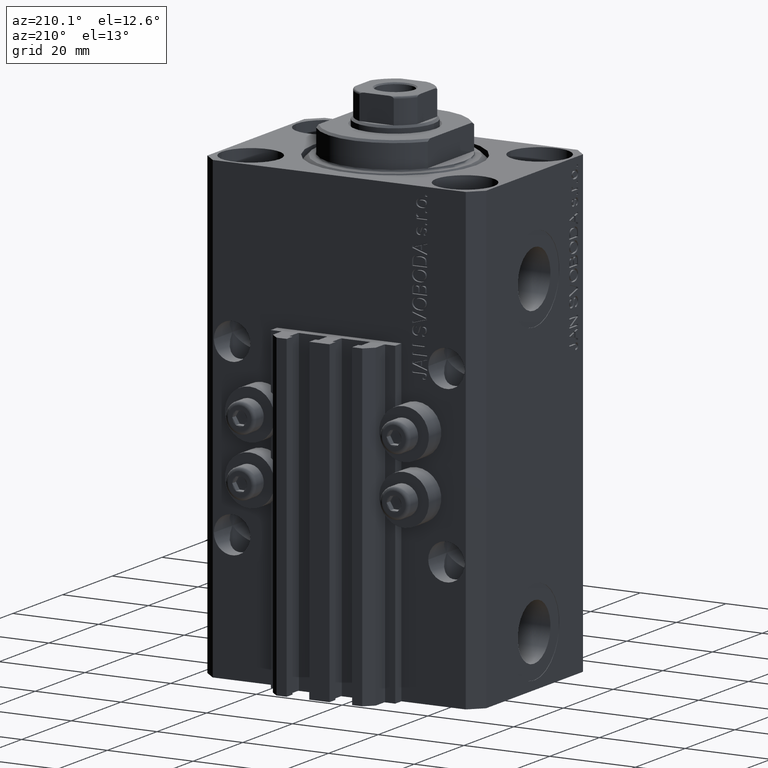
[diagram: clean part render]
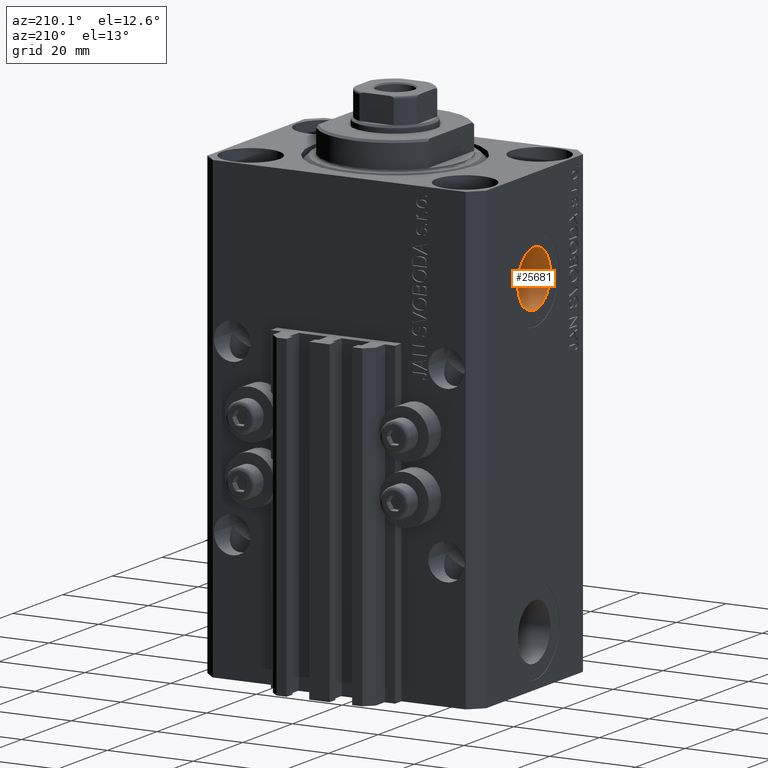
[diagram: same view with one face highlighted and labeled with its STEP entity id]
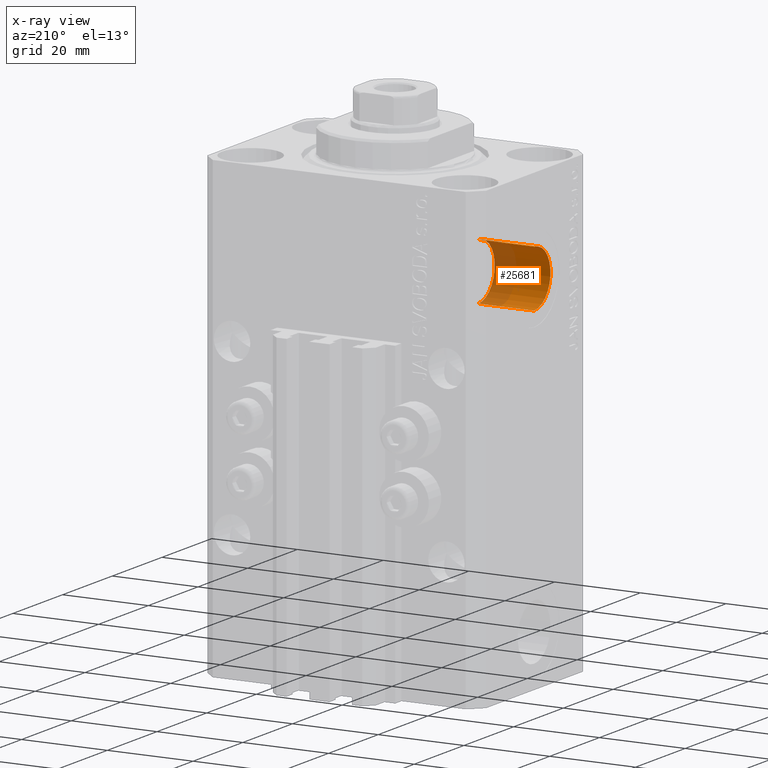
[diagram: x-ray of the same camera — body ghosted, the highlighted face saturated]
A machine part, auxiliary view. The second image highlights one B-rep face of the part: STEP entity #25681.
The next image is the same camera in x-ray: the body ghosted, the highlighted face saturated — about 39% of this face is hidden behind the body in this view.
In plain terms, the highlighted cylindrical surface (edge-blend (fillet) strip) has radius 6.58 mm, axis along (-1, -0, -0).
Its self-contained STEP definition (entity closure, byte-faithful):
#1216 = CIRCLE ( 'NONE', #46404, 6.579999999999999183 ) ;
#3394 = CARTESIAN_POINT ( 'NONE',  ( -19.39999999999650271, 8.058175938389579572E-16, -28.57999999999999829 ) ) ;
#3624 = DIRECTION ( 'NONE',  ( -1.000000000000000000, 0.000000000000000000, 0.000000000000000000 ) ) ;
#7938 = EDGE_CURVE ( 'NONE', #11320, #10035, #37848, .T. ) ;
#10035 = VERTEX_POINT ( 'NONE', #32880 ) ;
#11231 = DIRECTION ( 'NONE',  ( -1.000000000000000000, 0.000000000000000000, 0.000000000000000000 ) ) ;
#11320 = VERTEX_POINT ( 'NONE', #45996 ) ;
#11423 = CIRCLE ( 'NONE', #23134, 6.579999999999999183 ) ;
#11994 = DIRECTION ( 'NONE',  ( -1.000000000000000000, -0.000000000000000000, -0.000000000000000000 ) ) ;
#14557 = VECTOR ( 'NONE', #39255, 1000.000000000000000 ) ;
#14858 = CYLINDRICAL_SURFACE ( 'NONE', #41124, 6.579999999999999183 ) ;
#15668 = EDGE_LOOP ( 'NONE', ( #27097, #44246, #20724, #35242 ) ) ;
#18231 = VERTEX_POINT ( 'NONE', #30134 ) ;
#20724 = ORIENTED_EDGE ( 'NONE', *, *, #22836, .T. ) ;
#21700 = DIRECTION ( 'NONE',  ( -1.000000000000000000, -0.000000000000000000, -0.000000000000000000 ) ) ;
#21962 = VECTOR ( 'NONE', #11994, 1000.000000000000000 ) ;
#22179 = CARTESIAN_POINT ( 'NONE',  ( -32.39999999999650271, 0.000000000000000000, -22.00000000000000000 ) ) ;
#22836 = EDGE_CURVE ( 'NONE', #18231, #10035, #11423, .T. ) ;
#23134 = AXIS2_PLACEMENT_3D ( 'NONE', #22179, #3624, #34116 ) ;
#25135 = FACE_OUTER_BOUND ( 'NONE', #15668, .T. ) ;
#25681 = ADVANCED_FACE ( 'NONE', ( #25135 ), #14858, .F. ) ;
#27097 = ORIENTED_EDGE ( 'NONE', *, *, #27690, .F. ) ;
#27690 = EDGE_CURVE ( 'NONE', #47104, #11320, #1216, .T. ) ;
#29750 = EDGE_CURVE ( 'NONE', #47104, #18231, #37584, .T. ) ;
#30134 = CARTESIAN_POINT ( 'NONE',  ( -32.39999999999650271, 8.058175938389579572E-16, -28.57999999999999829 ) ) ;
#32880 = CARTESIAN_POINT ( 'NONE',  ( -32.39999999999650271, 0.000000000000000000, -15.41999999999999993 ) ) ;
#32923 = CARTESIAN_POINT ( 'NONE',  ( -19.39999999999650271, 0.000000000000000000, -22.00000000000000000 ) ) ;
#33670 = DIRECTION ( 'NONE',  ( 0.000000000000000000, 0.000000000000000000, 1.000000000000000000 ) ) ;
#34116 = DIRECTION ( 'NONE',  ( 0.000000000000000000, 0.000000000000000000, 1.000000000000000000 ) ) ;
#35242 = ORIENTED_EDGE ( 'NONE', *, *, #7938, .F. ) ;
#37584 = LINE ( 'NONE', #45126, #14557 ) ;
#37848 = LINE ( 'NONE', #42214, #21962 ) ;
#39255 = DIRECTION ( 'NONE',  ( -1.000000000000000000, -0.000000000000000000, -0.000000000000000000 ) ) ;
#41124 = AXIS2_PLACEMENT_3D ( 'NONE', #32923, #21700, #44371 ) ;
#42214 = CARTESIAN_POINT ( 'NONE',  ( -19.39999999999650271, 0.000000000000000000, -15.41999999999999993 ) ) ;
#44246 = ORIENTED_EDGE ( 'NONE', *, *, #29750, .T. ) ;
#44371 = DIRECTION ( 'NONE',  ( 0.000000000000000000, 0.000000000000000000, 1.000000000000000000 ) ) ;
#45126 = CARTESIAN_POINT ( 'NONE',  ( -19.39999999999650271, 8.058175938389580558E-16, -28.57999999999999829 ) ) ;
#45360 = CARTESIAN_POINT ( 'NONE',  ( -19.39999999999650271, 0.000000000000000000, -22.00000000000000000 ) ) ;
#45996 = CARTESIAN_POINT ( 'NONE',  ( -19.39999999999650271, 0.000000000000000000, -15.41999999999999993 ) ) ;
#46404 = AXIS2_PLACEMENT_3D ( 'NONE', #45360, #11231, #33670 ) ;
#47104 = VERTEX_POINT ( 'NONE', #3394 ) ;